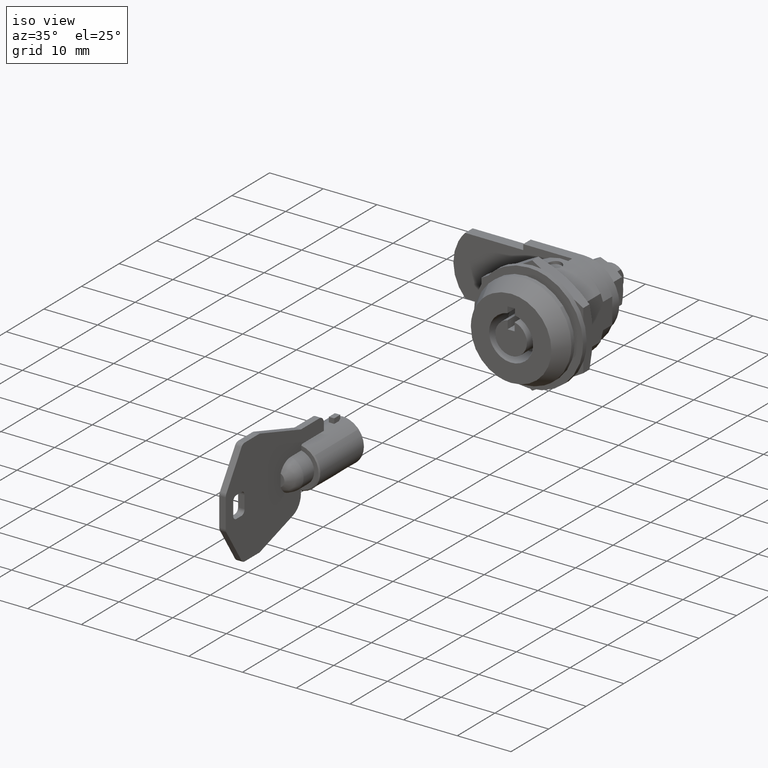
[diagram: clean part render]
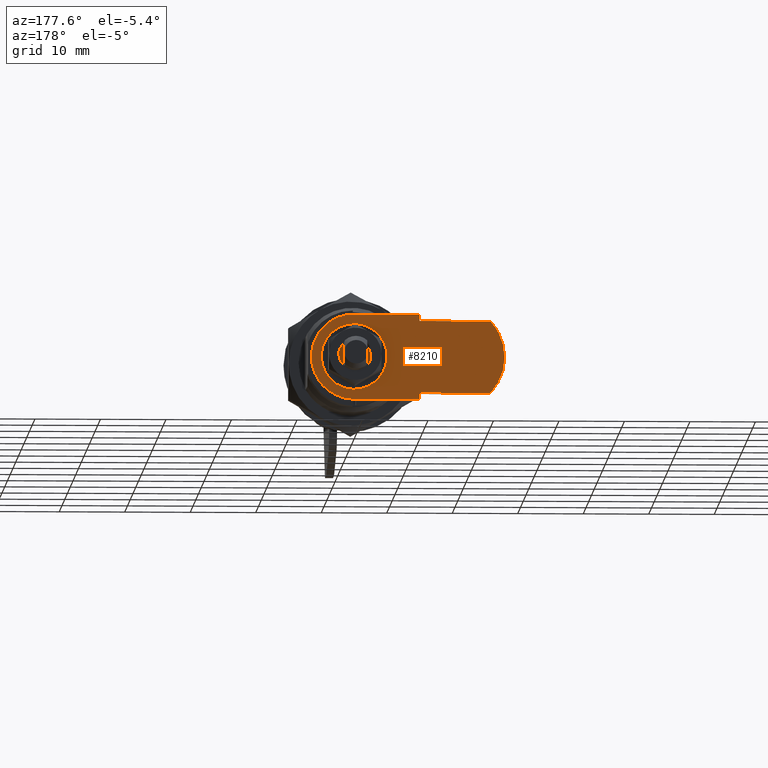
[diagram: tour spotlight — one face highlighted and labeled with its STEP entity id]
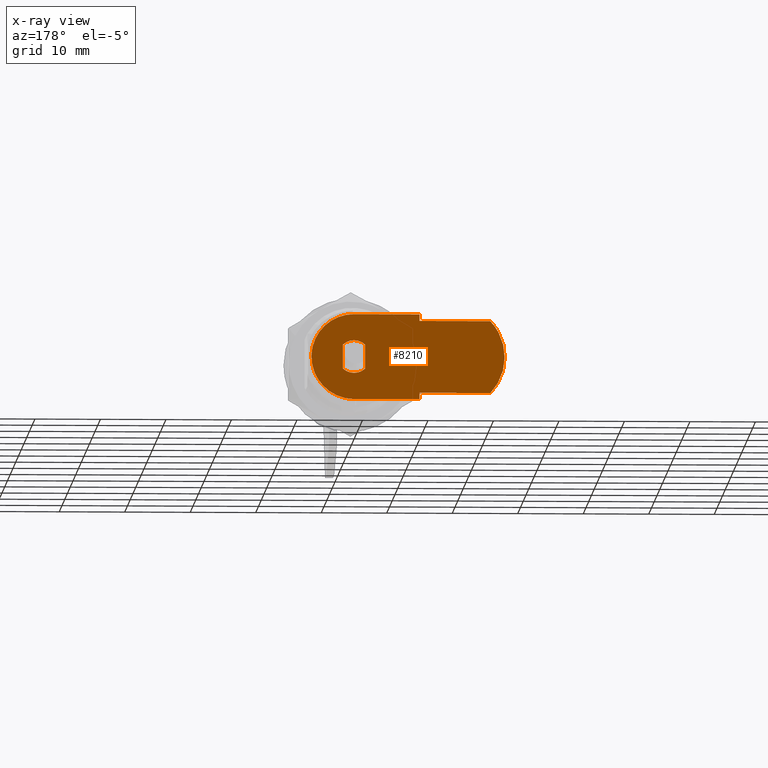
[diagram: x-ray of the same camera — body ghosted, this tour face saturated]
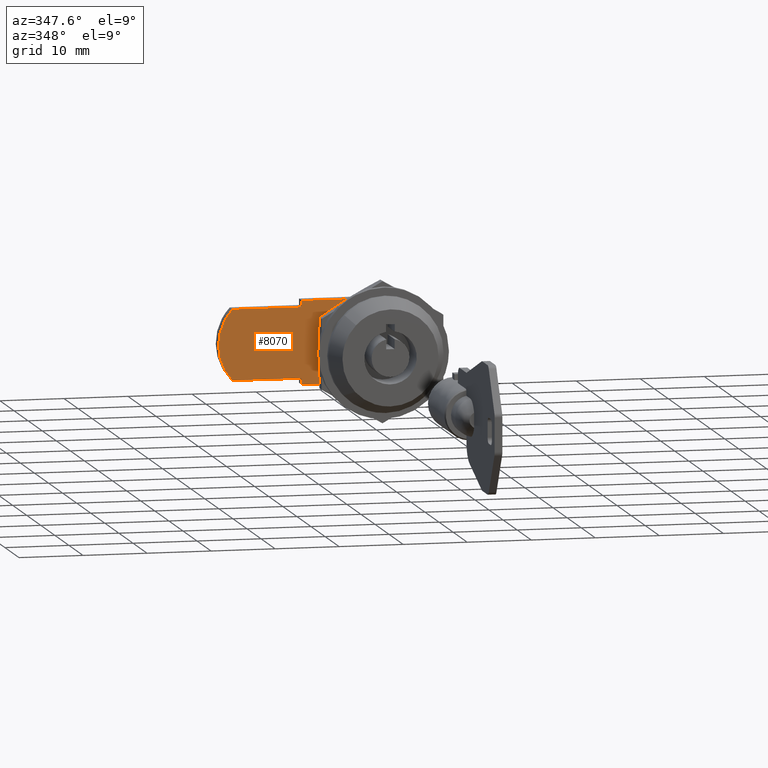
[diagram: tour spotlight — one face highlighted and labeled with its STEP entity id]
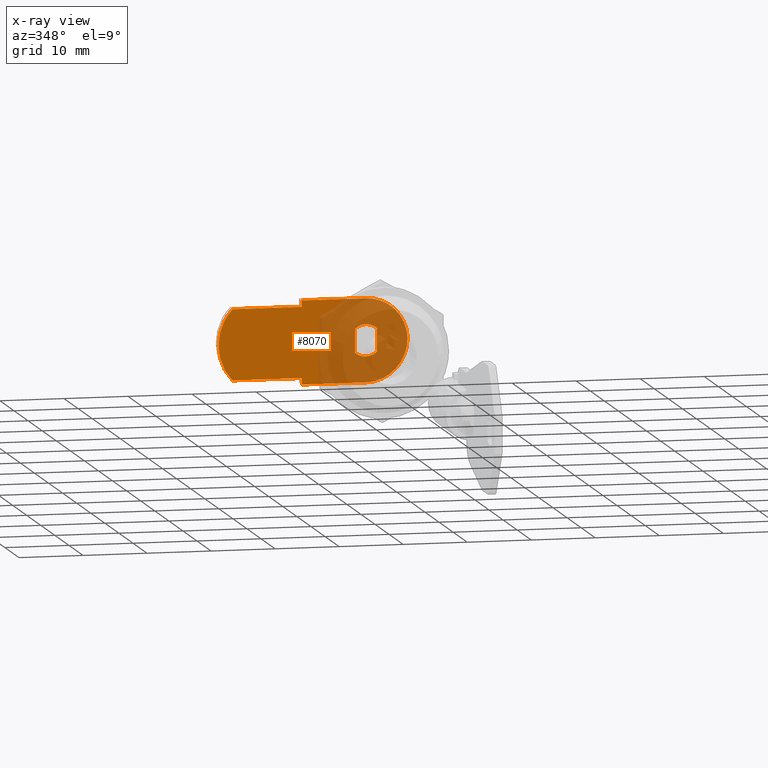
[diagram: x-ray of the same camera — body ghosted, this tour face saturated]
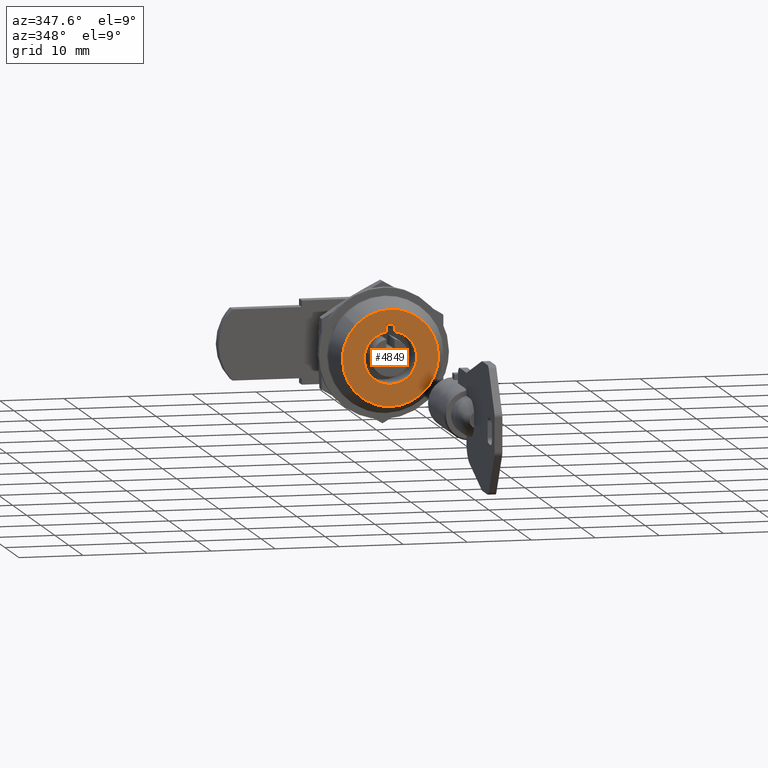
[diagram: tour spotlight — one face highlighted and labeled with its STEP entity id]
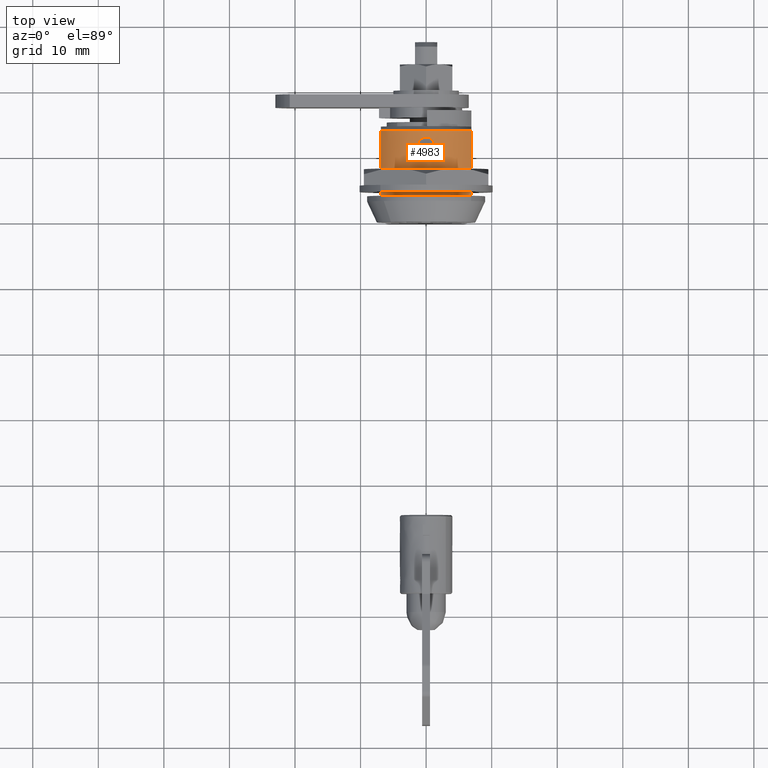
[diagram: tour spotlight — one face highlighted and labeled with its STEP entity id]
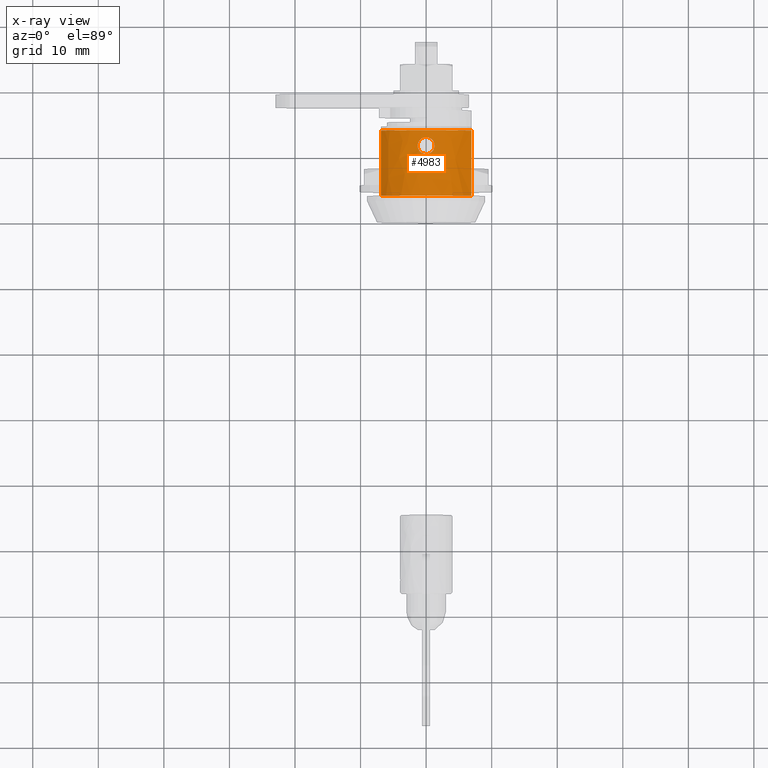
[diagram: x-ray of the same camera — body ghosted, this tour face saturated]
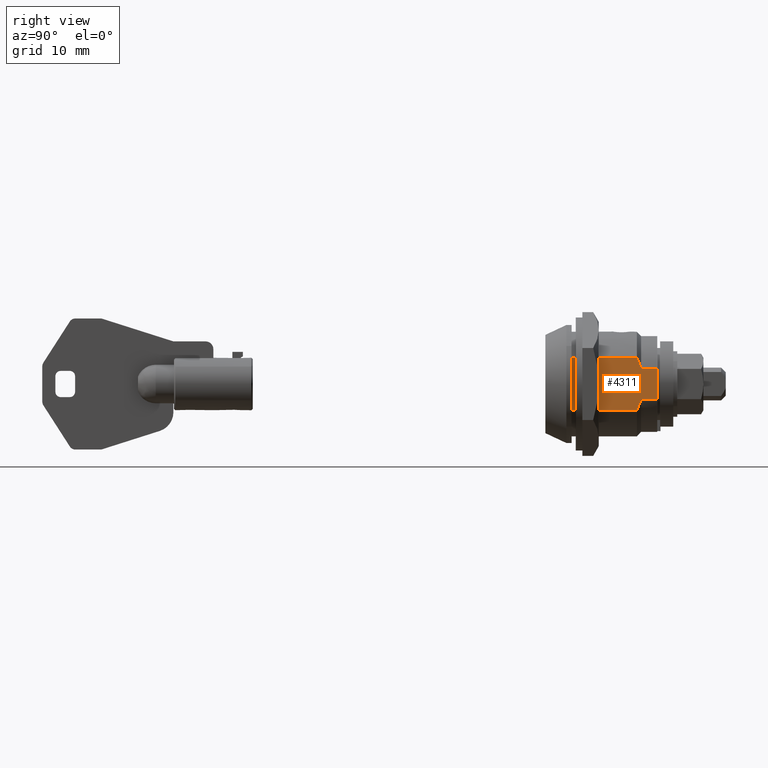
[diagram: tour spotlight — one face highlighted and labeled with its STEP entity id]
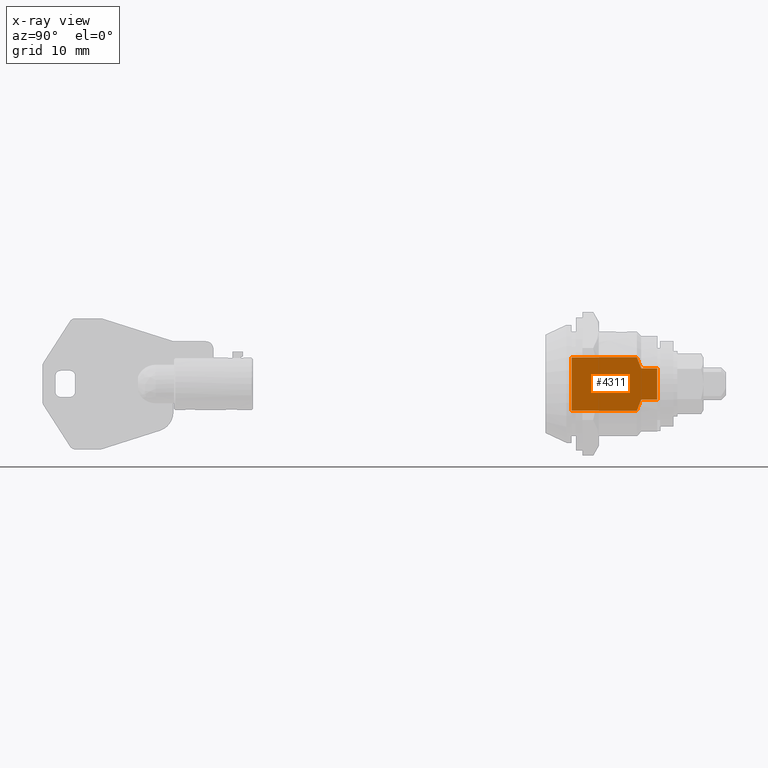
[diagram: x-ray of the same camera — body ghosted, this tour face saturated]
A machine part: a face-by-face anatomy tour. The part has 162 B-rep faces; the first image is the clean iso view, then the 5 largest visible faces are spotlighted one at a time (largest first), each with its STEP entity span.

Face 1 — auxiliary view, entity #8210. An x-ray twin of the same camera follows (body ghosted, this face saturated) — the face is partly hidden behind the body. In plain terms, the highlighted face is a freeform B-spline surface patch.
Definition (entity closure, byte-faithful):
#8071=CARTESIAN_POINT('',(19.499800000000000,-7.973526945322893,7.149349974803480));
#8072=CARTESIAN_POINT('',(19.499800000000000,24.473567826658670,7.149349974803480));
#8073=CARTESIAN_POINT('',(19.499800000000000,-7.973526945322893,-7.149350323490652));
#8074=CARTESIAN_POINT('',(19.499800000000000,24.473567826658670,-7.149350323490652));
#8075=B_SPLINE_SURFACE_WITH_KNOTS('',1,1,((#8071,#8073),(#8072,#8074)),.UNSPECIFIED.,.F.,.F.,.U.,(2,2),(2,2),(0.0,32.447094771981561),(0.0,14.298700298294129),.UNSPECIFIED.);
#8076=CARTESIAN_POINT('',(19.499800000000000,20.809475019311002,-5.500000000000000));
#8077=VERTEX_POINT('',#8076);
#8078=CARTESIAN_POINT('',(19.499800000000000,20.809475019311002,5.500000000000000));
#8079=VERTEX_POINT('',#8078);
#8080=CARTESIAN_POINT('',(19.499800000000000,20.809475019311002,-5.500000000000000));
#8081=CARTESIAN_POINT('',(19.499800000000040,21.352642534375711,-4.926796942105954));
#8082=CARTESIAN_POINT('',(19.499799999999968,22.083774110516860,-3.879554532072929));
#8083=CARTESIAN_POINT('',(19.499800000000061,22.765759298593220,-2.137341507980859));
#8084=CARTESIAN_POINT('',(19.499799999999830,23.015593560691549,-0.696755047744979));
#8085=CARTESIAN_POINT('',(19.499800000000221,22.997211410926269,0.854739609446329));
#8086=CARTESIAN_POINT('',(19.499799999999912,22.704118112759321,2.383373050502486));
#8087=CARTESIAN_POINT('',(19.499799999999858,21.984088963247689,4.045948512109888));
#8088=CARTESIAN_POINT('',(19.499800000000199,21.243884014519349,5.041359311464127));
#8089=CARTESIAN_POINT('',(19.499800000000000,20.809475019311002,5.500000000000000));
#8090=B_SPLINE_CURVE_WITH_KNOTS('',3,(#8080,#8081,#8082,#8083,#8084,#8085,#8086,#8087,#8088,#8089),.UNSPECIFIED.,.F.,.U.,(4,1,1,1,1,1,1,4),(0.000000076347678,2.368888360694081,3.790233793899564,5.590592220531494,6.727622310176332,8.433252129684943,10.233612536371650,12.128723139913379),.UNSPECIFIED.);
#8091=EDGE_CURVE('',#8077,#8079,#8090,.T.);
#8092=ORIENTED_EDGE('',*,*,#8091,.T.);
#8093=CARTESIAN_POINT('',(19.499800000000000,10.0,5.500000000000000));
#8094=VERTEX_POINT('',#8093);
#8095=CARTESIAN_POINT('',(19.499800000000000,10.0,5.500000000000000));
#8096=CARTESIAN_POINT('',(19.499800000000000,20.809475019311002,5.500000000000000));
#8097=QUASI_UNIFORM_CURVE('',1,(#8095,#8096),.UNSPECIFIED.,.F.,.U.);
#8098=EDGE_CURVE('',#8094,#8079,#8097,.T.);
#8099=ORIENTED_EDGE('',*,*,#8098,.F.);
#8100=CARTESIAN_POINT('',(19.499800000000000,10.0,6.500000000000000));
#8101=VERTEX_POINT('',#8100);
#8102=CARTESIAN_POINT('',(19.499800000000000,10.0,6.500000000000000));
#8103=CARTESIAN_POINT('',(19.499800000000000,10.0,5.500000000000000));
#8104=QUASI_UNIFORM_CURVE('',1,(#8102,#8103),.UNSPECIFIED.,.F.,.U.);
#8105=EDGE_CURVE('',#8101,#8094,#8104,.T.);
#8106=ORIENTED_EDGE('',*,*,#8105,.F.);
#8107=CARTESIAN_POINT('',(19.499800000000000,3.979971E-016,6.500000000000000));
#8108=VERTEX_POINT('',#8107);
#8109=CARTESIAN_POINT('',(19.499800000000000,3.979971E-016,6.500000000000000));
#8110=CARTESIAN_POINT('',(19.499800000000000,10.0,6.500000000000000));
#8111=QUASI_UNIFORM_CURVE('',1,(#8109,#8110),.UNSPECIFIED.,.F.,.U.);
#8112=EDGE_CURVE('',#8108,#8101,#8111,.T.);
#8113=ORIENTED_EDGE('',*,*,#8112,.F.);
#8114=CARTESIAN_POINT('',(19.499800000000000,-6.499999999999924,-0.000000993931555));
#8115=VERTEX_POINT('',#8114);
#8116=CARTESIAN_POINT('',(19.499800000000000,3.979971E-016,6.500000000000000));
#8117=CARTESIAN_POINT('',(19.499799999999890,-0.638179550828711,6.500301669190522));
#8118=CARTESIAN_POINT('',(19.499800000000160,-1.542024655136552,6.365762743129753));
#8119=CARTESIAN_POINT('',(19.499799999999851,-2.765549020631846,5.910887066382500));
#8120=CARTESIAN_POINT('',(19.499800000000150,-3.768048386981948,5.351177984998674));
#8121=CARTESIAN_POINT('',(19.499799999999990,-4.861971842230288,4.407655328397759));
#8122=CARTESIAN_POINT('',(19.499799999999961,-5.718390493506067,3.207318339105347));
#8123=CARTESIAN_POINT('',(19.499800000000089,-6.342058718977611,1.701550351389214));
#8124=CARTESIAN_POINT('',(19.499800000000040,-6.500274137962652,0.638164959091994));
#8125=CARTESIAN_POINT('',(19.499800000000000,-6.499999999999924,-0.000000993931555));
#8126=B_SPLINE_CURVE_WITH_KNOTS('',3,(#8116,#8117,#8118,#8119,#8120,#8121,#8122,#8123,#8124,#8125),.UNSPECIFIED.,.F.,.U.,(4,1,1,1,1,1,1,4),(0.000000096690091,1.914417247518765,2.712098249098593,3.908630291325436,5.344391319401957,7.019537575198939,8.295823594794740,10.210240748891540),.UNSPECIFIED.);
#8127=EDGE_CURVE('',#8108,#8115,#8126,.T.);
#8128=ORIENTED_EDGE('',*,*,#8127,.T.);
#8129=CARTESIAN_POINT('',(19.499800000000000,0.0,-6.500000000000000));
#8130=VERTEX_POINT('',#8129);
#8131=CARTESIAN_POINT('',(19.499800000000000,-6.499999999999924,-0.000000993931555));
#8132=CARTESIAN_POINT('',(19.499800000000089,-6.500221220229908,-0.584981770422163));
#8133=CARTESIAN_POINT('',(19.499799999999880,-6.377083749637980,-1.488886032808410));
#8134=CARTESIAN_POINT('',(19.499800000000100,-5.936938186833933,-2.718922228395391));
#8135=CARTESIAN_POINT('',(19.499800000000029,-5.351168341657617,-3.768041324002226));
#8136=CARTESIAN_POINT('',(19.499799999999901,-4.407668112098946,-4.861982818720227));
#8137=CARTESIAN_POINT('',(19.499800000000139,-3.360102897197002,-5.609406979973004));
#8138=CARTESIAN_POINT('',(19.499799999999979,-2.273618158672722,-6.115014741328975));
#8139=CARTESIAN_POINT('',(19.499799999999961,-1.249665569355025,-6.418798384958298));
#8140=CARTESIAN_POINT('',(19.499800000000029,-0.425423900910749,-6.500046852966523));
#8141=CARTESIAN_POINT('',(19.499800000000000,0.0,-6.500000000000000));
#8142=B_SPLINE_CURVE_WITH_KNOTS('',3,(#8131,#8132,#8133,#8134,#8135,#8136,#8137,#8138,#8139,#8140,#8141),.UNSPECIFIED.,.F.,.U.,(4,1,1,1,1,1,1,1,4),(0.000000097034606,1.754872022022992,2.712097951803362,3.908629862649992,5.344390732271959,7.019536804559957,7.737448089097114,8.933968644938119,10.210239628492021),.UNSPECIFIED.);
#8143=EDGE_CURVE('',#8115,#8130,#8142,.T.);
#8144=ORIENTED_EDGE('',*,*,#8143,.T.);
#8145=CARTESIAN_POINT('',(19.499800000000000,10.0,-6.500000000000000));
#8146=VERTEX_POINT('',#8145);
#8147=CARTESIAN_POINT('',(19.499800000000000,10.0,-6.500000000000000));
#8148=CARTESIAN_POINT('',(19.499800000000000,0.0,-6.500000000000000));
#8149=QUASI_UNIFORM_CURVE('',1,(#8147,#8148),.UNSPECIFIED.,.F.,.U.);
#8150=EDGE_CURVE('',#8146,#8130,#8149,.T.);
#8151=ORIENTED_EDGE('',*,*,#8150,.F.);
#8152=CARTESIAN_POINT('',(19.499800000000000,10.0,-5.500000000000000));
#8153=VERTEX_POINT('',#8152);
#8154=CARTESIAN_POINT('',(19.499800000000000,10.0,-5.500000000000000));
#8155=CARTESIAN_POINT('',(19.499800000000000,10.0,-6.500000000000000));
#8156=QUASI_UNIFORM_CURVE('',1,(#8154,#8155),.UNSPECIFIED.,.F.,.U.);
#8157=EDGE_CURVE('',#8153,#8146,#8156,.T.);
#8158=ORIENTED_EDGE('',*,*,#8157,.F.);
#8159=CARTESIAN_POINT('',(19.499800000000000,20.809475019311002,-5.500000000000000));
#8160=CARTESIAN_POINT('',(19.499800000000000,10.0,-5.500000000000000));
#8161=QUASI_UNIFORM_CURVE('',1,(#8159,#8160),.UNSPECIFIED.,.F.,.U.);
#8162=EDGE_CURVE('',#8077,#8153,#8161,.T.);
#8163=ORIENTED_EDGE('',*,*,#8162,.F.);
#8164=EDGE_LOOP('',(#8092,#8099,#8106,#8113,#8128,#8144,#8151,#8158,#8163));
#8165=FACE_OUTER_BOUND('',#8164,.T.);
#8166=CARTESIAN_POINT('',(19.499800000000000,-1.700000000000100,-1.833030277982240));
#8167=VERTEX_POINT('',#8166);
#8168=CARTESIAN_POINT('',(19.499800000000000,1.699999999999905,-1.833030277982425));
#8169=VERTEX_POINT('',#8168);
#8170=CARTESIAN_POINT('',(19.499800000000000,-1.700000000000100,-1.833030277982240));
#8171=CARTESIAN_POINT('',(19.499800000000018,-1.542975839810066,-1.978712755647818));
#8172=CARTESIAN_POINT('',(19.499799999999940,-1.159226248473611,-2.252248391724998));
#8173=CARTESIAN_POINT('',(19.499800000000100,-0.564741337652000,-2.461766407830945));
#8174=CARTESIAN_POINT('',(19.499799999999919,-0.038944429262949,-2.510932677086630));
#8175=CARTESIAN_POINT('',(19.499800000000100,0.408910333473132,-2.479477590470370));
#8176=CARTESIAN_POINT('',(19.499799999999929,1.016830033715589,-2.327465594689200));
#8177=CARTESIAN_POINT('',(19.499800000000000,1.457452750838059,-2.058412050794656));
#8178=CARTESIAN_POINT('',(19.499800000000000,1.699999999999905,-1.833030277982425));
#8179=B_SPLINE_CURVE_WITH_KNOTS('',3,(#8170,#8171,#8172,#8173,#8174,#8175,#8176,#8177,#8178),.UNSPECIFIED.,.F.,.U.,(4,1,1,1,1,1,4),(0.000000080748101,0.642612286244308,1.402106388864894,1.869449200517366,2.219946369140934,2.745750830210588,3.738898220578558),.UNSPECIFIED.);
#8180=EDGE_CURVE('',#8167,#8169,#8179,.T.);
#8181=ORIENTED_EDGE('',*,*,#8180,.F.);
#8182=CARTESIAN_POINT('',(19.499800000000000,-1.700000000000100,1.833030277982240));
#8183=VERTEX_POINT('',#8182);
#8184=CARTESIAN_POINT('',(19.499800000000000,-1.700000000000100,1.833030277982240));
#8185=CARTESIAN_POINT('',(19.499800000000000,-1.700000000000100,-1.833030277982240));
#8186=QUASI_UNIFORM_CURVE('',1,(#8184,#8185),.UNSPECIFIED.,.F.,.U.);
#8187=EDGE_CURVE('',#8183,#8167,#8186,.T.);
#8188=ORIENTED_EDGE('',*,*,#8187,.F.);
#8189=CARTESIAN_POINT('',(19.499800000000000,1.699999999999905,1.833030277982425));
#8190=VERTEX_POINT('',#8189);
#8191=CARTESIAN_POINT('',(19.499800000000000,1.699999999999905,1.833030277982425));
#8192=CARTESIAN_POINT('',(19.499800000000018,1.571518947953197,1.952224475331377));
#8193=CARTESIAN_POINT('',(19.499800000000000,1.289335029579031,2.163391811132033));
#8194=CARTESIAN_POINT('',(19.499800000000011,0.720435903075041,2.426093756971957));
#8195=CARTESIAN_POINT('',(19.499800000000029,0.058428779770395,2.535323226505843));
#8196=CARTESIAN_POINT('',(19.499800000000000,-0.584170886864564,2.452167904422844));
#8197=CARTESIAN_POINT('',(19.499799999999979,-1.171984765603290,2.237228747349889));
#8198=CARTESIAN_POINT('',(19.499799999999919,-1.514460303504250,2.005276174245930));
#8199=CARTESIAN_POINT('',(19.499800000000000,-1.700000000000100,1.833030277982240));
#8200=B_SPLINE_CURVE_WITH_KNOTS('',3,(#8191,#8192,#8193,#8194,#8195,#8196,#8197,#8198,#8199),.UNSPECIFIED.,.F.,.U.,(4,1,1,1,1,1,4),(0.000000080748095,0.525778615186002,1.051566484969231,1.869449200517372,2.512071383520074,2.979439561864485,3.738898220578558),.UNSPECIFIED.);
#8201=EDGE_CURVE('',#8190,#8183,#8200,.T.);
#8202=ORIENTED_EDGE('',*,*,#8201,.F.);
#8203=CARTESIAN_POINT('',(19.499800000000000,1.699999999999905,-1.833030277982425));
#8204=CARTESIAN_POINT('',(19.499800000000000,1.699999999999905,1.833030277982425));
#8205=QUASI_UNIFORM_CURVE('',1,(#8203,#8204),.UNSPECIFIED.,.F.,.U.);
#8206=EDGE_CURVE('',#8169,#8190,#8205,.T.);
#8207=ORIENTED_EDGE('',*,*,#8206,.F.);
#8208=EDGE_LOOP('',(#8181,#8188,#8202,#8207));
#8209=FACE_BOUND('',#8208,.T.);
#8210=ADVANCED_FACE('',(#8165,#8209),#8075,.F.);

Face 2 — auxiliary view, entity #8070. An x-ray twin of the same camera follows (body ghosted, this face saturated) — the face is partly hidden behind the body. In plain terms, the highlighted face is a freeform B-spline surface patch.
Definition (entity closure, byte-faithful):
#7927=CARTESIAN_POINT('',(17.499800000000000,-7.973524205060147,7.149349974803480));
#7928=CARTESIAN_POINT('',(17.499800000000000,24.473510226280869,7.149349974803480));
#7929=CARTESIAN_POINT('',(17.499800000000000,-7.973524205060147,-7.149350323490652));
#7930=CARTESIAN_POINT('',(17.499800000000000,24.473510226280869,-7.149350323490652));
#7931=B_SPLINE_SURFACE_WITH_KNOTS('',1,1,((#7927,#7929),(#7928,#7930)),.UNSPECIFIED.,.F.,.F.,.U.,(2,2),(2,2),(0.0,32.447034431341017),(0.0,14.298700298294129),.UNSPECIFIED.);
#7932=CARTESIAN_POINT('',(17.499800000000000,20.809475019311002,-5.500000000000000));
#7933=VERTEX_POINT('',#7932);
#7934=CARTESIAN_POINT('',(17.499800000000000,20.809475019311002,5.500000000000000));
#7935=VERTEX_POINT('',#7934);
#7936=CARTESIAN_POINT('',(17.499800000000000,20.809475019311002,-5.500000000000000));
#7937=CARTESIAN_POINT('',(17.499799999999951,21.309119271392959,-4.972608236305004));
#7938=CARTESIAN_POINT('',(17.499800000000089,21.940133550164450,-4.091422995667212));
#7939=CARTESIAN_POINT('',(17.499799999999890,22.586143320282549,-2.646621180567522));
#7940=CARTESIAN_POINT('',(17.499800000000182,22.880394887116331,-1.543013839063670));
#7941=CARTESIAN_POINT('',(17.499799999999780,23.018896521120109,-0.317243437445659));
#7942=CARTESIAN_POINT('',(17.499800000000139,22.993372374961961,0.760028063263485));
#7943=CARTESIAN_POINT('',(17.499799999999841,22.798622483652149,1.882738151437212));
#7944=CARTESIAN_POINT('',(17.499800000000128,22.469086854556391,2.940424929674380));
#7945=CARTESIAN_POINT('',(17.499799999999770,21.870174698167901,4.199065611414202));
#7946=CARTESIAN_POINT('',(17.499800000000221,21.243889006018279,5.041363272320189));
#7947=CARTESIAN_POINT('',(17.499800000000000,20.809475019311002,5.500000000000000));
#7948=B_SPLINE_CURVE_WITH_KNOTS('',3,(#7936,#7937,#7938,#7939,#7940,#7941,#7942,#7943,#7944,#7945,#7946,#7947),.UNSPECIFIED.,.F.,.U.,(4,1,1,1,1,1,1,1,1,4),(0.000000076347678,2.179369468120905,3.221692574467047,4.737802405796497,5.590592220531494,6.917138359436771,7.959472208947114,9.001785407281872,10.233612536371650,12.128723139913379),.UNSPECIFIED.);
#7949=EDGE_CURVE('',#7933,#7935,#7948,.T.);
#7950=ORIENTED_EDGE('',*,*,#7949,.F.);
#7951=CARTESIAN_POINT('',(17.499800000000000,10.0,-5.500000000000000));
#7952=VERTEX_POINT('',#7951);
#7953=CARTESIAN_POINT('',(17.499800000000000,20.809475019311002,-5.500000000000000));
#7954=CARTESIAN_POINT('',(17.499800000000000,10.0,-5.500000000000000));
#7955=QUASI_UNIFORM_CURVE('',1,(#7953,#7954),.UNSPECIFIED.,.F.,.U.);
#7956=EDGE_CURVE('',#7933,#7952,#7955,.T.);
#7957=ORIENTED_EDGE('',*,*,#7956,.T.);
#7958=CARTESIAN_POINT('',(17.499800000000000,10.0,-6.500000000000000));
#7959=VERTEX_POINT('',#7958);
#7960=CARTESIAN_POINT('',(17.499800000000000,10.0,-5.500000000000000));
#7961=CARTESIAN_POINT('',(17.499800000000000,10.0,-6.500000000000000));
#7962=QUASI_UNIFORM_CURVE('',1,(#7960,#7961),.UNSPECIFIED.,.F.,.U.);
#7963=EDGE_CURVE('',#7952,#7959,#7962,.T.);
#7964=ORIENTED_EDGE('',*,*,#7963,.T.);
#7965=CARTESIAN_POINT('',(17.499800000000000,0.0,-6.500000000000000));
#7966=VERTEX_POINT('',#7965);
#7967=CARTESIAN_POINT('',(17.499800000000000,10.0,-6.500000000000000));
#7968=CARTESIAN_POINT('',(17.499800000000000,0.0,-6.500000000000000));
#7969=QUASI_UNIFORM_CURVE('',1,(#7967,#7968),.UNSPECIFIED.,.F.,.U.);
#7970=EDGE_CURVE('',#7959,#7966,#7969,.T.);
#7971=ORIENTED_EDGE('',*,*,#7970,.T.);
#7972=CARTESIAN_POINT('',(17.499800000000000,-6.499999999999924,-0.000000993931555));
#7973=VERTEX_POINT('',#7972);
#7974=CARTESIAN_POINT('',(17.499800000000000,-6.499999999999924,-0.000000993931555));
#7975=CARTESIAN_POINT('',(17.499799999999990,-6.500050616228368,-0.425427042327566));
#7976=CARTESIAN_POINT('',(17.499800000000040,-6.426642529057130,-1.169896962440129));
#7977=CARTESIAN_POINT('',(17.499799999999951,-6.149291729741768,-2.172008203176689));
#7978=CARTESIAN_POINT('',(17.499800000000061,-5.702088948834822,-3.198104650409914));
#7979=CARTESIAN_POINT('',(17.499799999999951,-5.011679629483419,-4.217758870349840));
#7980=CARTESIAN_POINT('',(17.499800000000050,-4.063475574829587,-5.120432628756674));
#7981=CARTESIAN_POINT('',(17.499799999999929,-3.191045881654870,-5.687978824075811));
#7982=CARTESIAN_POINT('',(17.499800000000061,-2.273625035879995,-6.115025978798578));
#7983=CARTESIAN_POINT('',(17.499799999999951,-1.249666720935796,-6.418800240558206));
#7984=CARTESIAN_POINT('',(17.499800000000029,-0.425423716752507,-6.500046548348649));
#7985=CARTESIAN_POINT('',(17.499800000000000,0.0,-6.500000000000000));
#7986=B_SPLINE_CURVE_WITH_KNOTS('',3,(#7974,#7975,#7976,#7977,#7978,#7979,#7980,#7981,#7982,#7983,#7984,#7985),.UNSPECIFIED.,.F.,.U.,(4,1,1,1,1,1,1,1,1,4),(0.000000097034606,1.276275196461892,2.233488183033234,3.110936171743759,4.626547442655870,5.902766694716857,7.019536804559957,7.737448089097114,8.933968644938119,10.210239628492021),.UNSPECIFIED.);
#7987=EDGE_CURVE('',#7973,#7966,#7986,.T.);
#7988=ORIENTED_EDGE('',*,*,#7987,.F.);
#7989=CARTESIAN_POINT('',(17.499800000000000,3.979971E-016,6.500000000000000));
#7990=VERTEX_POINT('',#7989);
#7991=CARTESIAN_POINT('',(17.499800000000000,3.979971E-016,6.500000000000000));
#7992=CARTESIAN_POINT('',(17.499800000000000,-0.372237101755605,6.500022234706312));
#7993=CARTESIAN_POINT('',(17.499800000000000,-1.196504315342978,6.429042349372064));
#7994=CARTESIAN_POINT('',(17.499800000000040,-2.251060215257179,6.130233380089554));
#7995=CARTESIAN_POINT('',(17.499799999999990,-3.310684022483225,5.629072978366904));
#7996=CARTESIAN_POINT('',(17.499800000000000,-4.298511773627595,4.942444478894545));
#7997=CARTESIAN_POINT('',(17.499800000000040,-5.154220962933634,4.021250485101271));
#7998=CARTESIAN_POINT('',(17.499800000000079,-5.810306308076611,2.985080447231671));
#7999=CARTESIAN_POINT('',(17.499799999999940,-6.342078995919162,1.701563344428691));
#8000=CARTESIAN_POINT('',(17.499799999999979,-6.500273560504184,0.638164895137527));
#8001=CARTESIAN_POINT('',(17.499800000000000,-6.499999999999924,-0.000000993931555));
#8002=B_SPLINE_CURVE_WITH_KNOTS('',3,(#7991,#7992,#7993,#7994,#7995,#7996,#7997,#7998,#7999,#8000,#8001),.UNSPECIFIED.,.F.,.U.,(4,1,1,1,1,1,1,1,4),(0.000000096690091,1.116721878004373,2.472792581775597,3.270479893261324,4.626547949817617,6.062319231493549,7.019537575198939,8.295823594794740,10.210240748891540),.UNSPECIFIED.);
#8003=EDGE_CURVE('',#7990,#7973,#8002,.T.);
#8004=ORIENTED_EDGE('',*,*,#8003,.F.);
#8005=CARTESIAN_POINT('',(17.499800000000000,10.0,6.500000000000000));
#8006=VERTEX_POINT('',#8005);
#8007=CARTESIAN_POINT('',(17.499800000000000,3.979971E-016,6.500000000000000));
#8008=CARTESIAN_POINT('',(17.499800000000000,10.0,6.500000000000000));
#8009=QUASI_UNIFORM_CURVE('',1,(#8007,#8008),.UNSPECIFIED.,.F.,.U.);
#8010=EDGE_CURVE('',#7990,#8006,#8009,.T.);
#8011=ORIENTED_EDGE('',*,*,#8010,.T.);
#8012=CARTESIAN_POINT('',(17.499800000000000,10.0,5.500000000000000));
#8013=VERTEX_POINT('',#8012);
#8014=CARTESIAN_POINT('',(17.499800000000000,10.0,6.500000000000000));
#8015=CARTESIAN_POINT('',(17.499800000000000,10.0,5.500000000000000));
#8016=QUASI_UNIFORM_CURVE('',1,(#8014,#8015),.UNSPECIFIED.,.F.,.U.);
#8017=EDGE_CURVE('',#8006,#8013,#8016,.T.);
#8018=ORIENTED_EDGE('',*,*,#8017,.T.);
#8019=CARTESIAN_POINT('',(17.499800000000000,10.0,5.500000000000000));
#8020=CARTESIAN_POINT('',(17.499800000000000,20.809475019311002,5.500000000000000));
#8021=QUASI_UNIFORM_CURVE('',1,(#8019,#8020),.UNSPECIFIED.,.F.,.U.);
#8022=EDGE_CURVE('',#8013,#7935,#8021,.T.);
#8023=ORIENTED_EDGE('',*,*,#8022,.T.);
#8024=EDGE_LOOP('',(#7950,#7957,#7964,#7971,#7988,#8004,#8011,#8018,#8023));
#8025=FACE_OUTER_BOUND('',#8024,.T.);
#8026=CARTESIAN_POINT('',(17.499800000000000,-1.700000000000100,-1.833030277982240));
#8027=VERTEX_POINT('',#8026);
#8028=CARTESIAN_POINT('',(17.499800000000000,1.699999999999905,-1.833030277982425));
#8029=VERTEX_POINT('',#8028);
#8030=CARTESIAN_POINT('',(17.499800000000000,-1.700000000000100,-1.833030277982240));
#8031=CARTESIAN_POINT('',(17.499800000000000,-1.542976544255501,-1.978713760855437));
#8032=CARTESIAN_POINT('',(17.499799999999990,-1.159218864501799,-2.252236381345497));
#8033=CARTESIAN_POINT('',(17.499800000000018,-0.564747402386226,-2.461758240943283));
#8034=CARTESIAN_POINT('',(17.499800000000000,0.058436019779209,-2.520108597014581));
#8035=CARTESIAN_POINT('',(17.499800000000029,0.584165204956891,-2.452174121023456));
#8036=CARTESIAN_POINT('',(17.499799999999990,1.171981981176068,-2.237238693810963));
#8037=CARTESIAN_POINT('',(17.499800000000000,1.514467260272893,-2.005280983720652));
#8038=CARTESIAN_POINT('',(17.499800000000000,1.699999999999905,-1.833030277982425));
#8039=B_SPLINE_CURVE_WITH_KNOTS('',3,(#8030,#8031,#8032,#8033,#8034,#8035,#8036,#8037,#8038),.UNSPECIFIED.,.F.,.U.,(4,1,1,1,1,1,4),(0.000000080748101,0.642612286244308,1.402106388864894,1.869449200517366,2.512071383520067,2.979439561864480,3.738898220578558),.UNSPECIFIED.);
#8040=EDGE_CURVE('',#8027,#8029,#8039,.T.);
#8041=ORIENTED_EDGE('',*,*,#8040,.T.);
#8042=CARTESIAN_POINT('',(17.499800000000000,1.699999999999905,1.833030277982425));
#8043=VERTEX_POINT('',#8042);
#8044=CARTESIAN_POINT('',(17.499800000000000,1.699999999999905,-1.833030277982425));
#8045=CARTESIAN_POINT('',(17.499800000000000,1.699999999999905,1.833030277982425));
#8046=QUASI_UNIFORM_CURVE('',1,(#8044,#8045),.UNSPECIFIED.,.F.,.U.);
#8047=EDGE_CURVE('',#8029,#8043,#8046,.T.);
#8048=ORIENTED_EDGE('',*,*,#8047,.T.);
#8049=CARTESIAN_POINT('',(17.499800000000000,-1.700000000000100,1.833030277982240));
#8050=VERTEX_POINT('',#8049);
#8051=CARTESIAN_POINT('',(17.499800000000000,1.699999999999905,1.833030277982425));
#8052=CARTESIAN_POINT('',(17.499800000000018,1.571518212829504,1.952224125626275));
#8053=CARTESIAN_POINT('',(17.499799999999968,1.289335394523938,2.163392374151371));
#8054=CARTESIAN_POINT('',(17.499800000000018,0.720435892810812,2.426093181110296));
#8055=CARTESIAN_POINT('',(17.499800000000018,0.058428567729503,2.535324012118452));
#8056=CARTESIAN_POINT('',(17.499800000000018,-0.584169678361471,2.452165853440130));
#8057=CARTESIAN_POINT('',(17.499799999999901,-1.171989194135670,2.237234942144124));
#8058=CARTESIAN_POINT('',(17.499800000000018,-1.514455140850983,2.005268912750401));
#8059=CARTESIAN_POINT('',(17.499800000000000,-1.700000000000100,1.833030277982240));
#8060=B_SPLINE_CURVE_WITH_KNOTS('',3,(#8051,#8052,#8053,#8054,#8055,#8056,#8057,#8058,#8059),.UNSPECIFIED.,.F.,.U.,(4,1,1,1,1,1,4),(0.000000080748095,0.525778615186002,1.051566484969231,1.869449200517372,2.512071383520074,2.979439561864485,3.738898220578558),.UNSPECIFIED.);
#8061=EDGE_CURVE('',#8043,#8050,#8060,.T.);
#8062=ORIENTED_EDGE('',*,*,#8061,.T.);
#8063=CARTESIAN_POINT('',(17.499800000000000,-1.700000000000100,1.833030277982240));
#8064=CARTESIAN_POINT('',(17.499800000000000,-1.700000000000100,-1.833030277982240));
#8065=QUASI_UNIFORM_CURVE('',1,(#8063,#8064),.UNSPECIFIED.,.F.,.U.);
#8066=EDGE_CURVE('',#8050,#8027,#8065,.T.);
#8067=ORIENTED_EDGE('',*,*,#8066,.T.);
#8068=EDGE_LOOP('',(#8041,#8048,#8062,#8067));
#8069=FACE_BOUND('',#8068,.T.);
#8070=ADVANCED_FACE('',(#8025,#8069),#7931,.T.);

Face 3 — auxiliary view, entity #4849. In plain terms, the highlighted face is a freeform B-spline surface patch.
Definition (entity closure, byte-faithful):
#3403=CARTESIAN_POINT('',(-0.000000085441742,5.374882100453605,5.230739756825190));
#3404=VERTEX_POINT('',#3403);
#3410=CARTESIAN_POINT('',(0.0,0.0,7.500000000000000));
#3411=VERTEX_POINT('',#3410);
#3412=CARTESIAN_POINT('',(0.0,0.0,7.500000000000000));
#3413=CARTESIAN_POINT('',(-8.434475E-009,0.530587376547696,7.500093306336281));
#3414=CARTESIAN_POINT('',(-0.000000022821840,1.435653060119178,7.403522898235855));
#3415=CARTESIAN_POINT('',(-0.000000043339855,2.726379473530311,7.022384628638660));
#3416=CARTESIAN_POINT('',(-0.000000064423403,4.052681825330905,6.382689165830320));
#3417=CARTESIAN_POINT('',(-0.000000078177420,4.917905554608581,5.700610317487552));
#3418=CARTESIAN_POINT('',(-0.000000085441742,5.374882100453605,5.230739756825190));
#3419=B_SPLINE_CURVE_WITH_KNOTS('',3,(#3412,#3413,#3414,#3415,#3416,#3417,#3418),.UNSPECIFIED.,.F.,.U.,(4,1,1,1,4),(0.000000023702667,1.591745777649717,2.715347587254189,4.026177377958746,5.992452200920396),.UNSPECIFIED.);
#3420=EDGE_CURVE('',#3411,#3404,#3419,.T.);
#3422=CARTESIAN_POINT('',(0.0,-7.499999999999946,0.000000907479838));
#3423=VERTEX_POINT('',#3422);
#3424=CARTESIAN_POINT('',(0.0,-7.499999999999946,0.000000907479838));
#3425=CARTESIAN_POINT('',(0.0,-7.500040909963945,0.460196335229229));
#3426=CARTESIAN_POINT('',(0.0,-7.423521207879464,1.288530390547608));
#3427=CARTESIAN_POINT('',(0.0,-7.109873094784462,2.478394519780416));
#3428=CARTESIAN_POINT('',(0.0,-6.544277517155627,3.776315138436403));
#3429=CARTESIAN_POINT('',(0.0,-5.609958128699149,5.085779188196347));
#3430=CARTESIAN_POINT('',(0.0,-4.417844138939452,6.113910518102686));
#3431=CARTESIAN_POINT('',(0.0,-3.115513112078590,6.872987033294736));
#3432=CARTESIAN_POINT('',(0.0,-1.687364730732640,7.374102828863133));
#3433=CARTESIAN_POINT('',(0.0,-0.552235120740674,7.500088594287443));
#3434=CARTESIAN_POINT('',(0.0,0.0,7.500000000000000));
#3435=B_SPLINE_CURVE_WITH_KNOTS('',3,(#3424,#3425,#3426,#3427,#3428,#3429,#3430,#3431,#3432,#3433,#3434),.UNSPECIFIED.,.F.,.U.,(4,1,1,1,1,1,1,1,4),(0.000000071620079,1.380590362690722,2.485057898482156,3.681585578019947,5.614443789878998,7.271108675325365,8.375582316946616,10.124342298233691,11.781045860091870),.UNSPECIFIED.);
#3436=EDGE_CURVE('',#3423,#3411,#3435,.T.);
#3438=CARTESIAN_POINT('',(0.0,0.0,-7.500000000000000));
#3439=VERTEX_POINT('',#3438);
#3440=CARTESIAN_POINT('',(0.0,0.0,-7.500000000000000));
#3441=CARTESIAN_POINT('',(0.0,-0.582914537861173,-7.500114540307789));
#3442=CARTESIAN_POINT('',(0.0,-1.810077328070002,-7.356264954276630));
#3443=CARTESIAN_POINT('',(0.0,-3.401244041976450,-6.753796737725565));
#3444=CARTESIAN_POINT('',(0.0,-4.635801635078382,-5.939534964662294));
#3445=CARTESIAN_POINT('',(0.0,-5.604981588456239,-5.039262919363240));
#3446=CARTESIAN_POINT('',(0.0,-6.332968785137326,-4.082467183415490));
#3447=CARTESIAN_POINT('',(0.0,-6.920426060072250,-2.966934822807831));
#3448=CARTESIAN_POINT('',(0.0,-7.371255082857968,-1.656630029727687));
#3449=CARTESIAN_POINT('',(0.0,-7.500149237767837,-0.613599960049212));
#3450=CARTESIAN_POINT('',(0.0,-7.499999999999946,0.000000907479838));
#3451=B_SPLINE_CURVE_WITH_KNOTS('',3,(#3440,#3441,#3442,#3443,#3444,#3445,#3446,#3447,#3448,#3449,#3450),.UNSPECIFIED.,.F.,.U.,(4,1,1,1,1,1,1,1,4),(0.000000071296686,1.748738523979359,3.681585897514429,5.062195702551934,6.166604815529416,7.639260404901982,8.651707165409553,9.940274777202379,11.781046883039590),.UNSPECIFIED.);
#3452=EDGE_CURVE('',#3439,#3423,#3451,.T.);
#3454=CARTESIAN_POINT('',(0.000000086859496,5.529580222725956,-5.066926737313868));
#3455=VERTEX_POINT('',#3454);
#3456=CARTESIAN_POINT('',(0.000000086859496,5.529580222725956,-5.066926737313868));
#3457=CARTESIAN_POINT('',(0.000000081018100,5.157709866697757,-5.472885997012818));
#3458=CARTESIAN_POINT('',(0.000000069848024,4.446609355892382,-6.095024591268260));
#3459=CARTESIAN_POINT('',(0.000000052689654,3.354286870433909,-6.736597227132553));
#3460=CARTESIAN_POINT('',(0.000000037593584,2.393252888747303,-7.130067966309678));
#3461=CARTESIAN_POINT('',(0.000000020347396,1.295339764521334,-7.421054959823935));
#3462=CARTESIAN_POINT('',(7.630484E-009,0.485765789810888,-7.500060936292277));
#3463=CARTESIAN_POINT('',(0.0,0.0,-7.500000000000000));
#3464=B_SPLINE_CURVE_WITH_KNOTS('',3,(#3456,#3457,#3458,#3459,#3460,#3461,#3462,#3463),.UNSPECIFIED.,.F.,.U.,(4,1,1,1,1,4),(0.000000023410145,1.651599039970344,2.817449590096028,3.788955350378604,4.760488547951383,6.217779039372156),.UNSPECIFIED.);
#3465=EDGE_CURVE('',#3455,#3439,#3464,.T.);
#3497=CARTESIAN_POINT('',(0.0,7.499999999999946,-0.000000907479709));
#3498=VERTEX_POINT('',#3497);
#3499=CARTESIAN_POINT('',(0.0,7.499999999999946,-0.000000907479709));
#3500=CARTESIAN_POINT('',(9.934327E-009,7.500122947058391,-0.579517279242326));
#3501=CARTESIAN_POINT('',(0.000000026324448,7.388600249071323,-1.535630685969878));
#3502=CARTESIAN_POINT('',(0.000000047215815,7.002024296647858,-2.754323102065249));
#3503=CARTESIAN_POINT('',(0.000000066971386,6.450734879851965,-3.906759130446040));
#3504=CARTESIAN_POINT('',(0.000000079536574,5.921189036957312,-4.639746004044622));
#3505=CARTESIAN_POINT('',(0.000000086859496,5.529580222725956,-5.066926737313868));
#3506=B_SPLINE_CURVE_WITH_KNOTS('',3,(#3499,#3500,#3501,#3502,#3503,#3504,#3505),.UNSPECIFIED.,.F.,.U.,(4,1,1,1,4),(0.000000022897093,1.738521219972703,2.868545156090391,3.824746121373905,5.563267318454566),.UNSPECIFIED.);
#3507=EDGE_CURVE('',#3498,#3455,#3506,.T.);
#3509=CARTESIAN_POINT('',(-0.000000085441742,5.374882100453605,5.230739756825190));
#3510=CARTESIAN_POINT('',(-0.000000078384871,5.795549928920266,4.798718344587620));
#3511=CARTESIAN_POINT('',(-0.000000066151637,6.365951226575856,4.049800122192766));
#3512=CARTESIAN_POINT('',(-0.000000045851706,6.988352515270035,2.807038962014409));
#3513=CARTESIAN_POINT('',(-0.000000025115105,7.391526348600125,1.537544963112572));
#3514=CARTESIAN_POINT('',(-8.864541E-009,7.500098439127613,0.542685984353270));
#3515=CARTESIAN_POINT('',(0.0,7.499999999999946,-0.000000907479709));
#3516=B_SPLINE_CURVE_WITH_KNOTS('',3,(#3509,#3510,#3511,#3512,#3513,#3514,#3515),.UNSPECIFIED.,.F.,.U.,(4,1,1,1,4),(0.000000023778220,1.808940952302446,2.803864419366119,4.160551903953499,5.788594934866997),.UNSPECIFIED.);
#3517=EDGE_CURVE('',#3404,#3498,#3516,.T.);
#4554=CARTESIAN_POINT('',(0.0,0.674999999999983,5.200000000000000));
#4555=VERTEX_POINT('',#4554);
#4556=CARTESIAN_POINT('',(0.0,-0.675000000000011,5.200000000000000));
#4557=VERTEX_POINT('',#4556);
#4558=CARTESIAN_POINT('',(0.0,0.674999999999983,5.200000000000000));
#4559=CARTESIAN_POINT('',(0.0,-0.675000000000011,5.200000000000000));
#4560=QUASI_UNIFORM_CURVE('',1,(#4558,#4559),.UNSPECIFIED.,.F.,.U.);
#4561=EDGE_CURVE('',#4555,#4557,#4560,.T.);
#4582=CARTESIAN_POINT('',(0.0,0.674999999999985,4.044054277578380));
#4583=VERTEX_POINT('',#4582);
#4584=CARTESIAN_POINT('',(0.0,0.674999999999985,4.044054277578380));
#4585=CARTESIAN_POINT('',(0.0,0.674999999999983,5.200000000000000));
#4586=QUASI_UNIFORM_CURVE('',1,(#4584,#4585),.UNSPECIFIED.,.F.,.U.);
#4587=EDGE_CURVE('',#4583,#4555,#4586,.T.);
#4625=CARTESIAN_POINT('',(0.0,3.432366613419007,-2.242511857513033));
#4626=VERTEX_POINT('',#4625);
#4627=CARTESIAN_POINT('',(0.0,0.674999999999985,4.044054277578380));
#4628=CARTESIAN_POINT('',(0.0,1.009354639233272,3.988335300681613));
#4629=CARTESIAN_POINT('',(0.0,1.541259905183437,3.829798795333296));
#4630=CARTESIAN_POINT('',(0.0,2.272088868785087,3.439121025292757));
#4631=CARTESIAN_POINT('',(0.0,2.923464929733793,2.924050586841433));
#4632=CARTESIAN_POINT('',(0.0,3.485066808695901,2.225094703040486));
#4633=CARTESIAN_POINT('',(0.0,3.819840370776098,1.535548233800921));
#4634=CARTESIAN_POINT('',(0.0,4.024813464614039,0.866097252934131));
#4635=CARTESIAN_POINT('',(0.0,4.130384943715758,0.128362183925666));
#4636=CARTESIAN_POINT('',(0.0,4.071287498123331,-0.658577926669454));
#4637=CARTESIAN_POINT('',(0.0,3.852098357562305,-1.479282952254036));
#4638=CARTESIAN_POINT('',(0.0,3.617830745822351,-1.958796820367174));
#4639=CARTESIAN_POINT('',(0.0,3.432366613419007,-2.242511857513033));
#4640=B_SPLINE_CURVE_WITH_KNOTS('',3,(#4627,#4628,#4629,#4630,#4631,#4632,#4633,#4634,#4635,#4636,#4637,#4638,#4639),.UNSPECIFIED.,.F.,.U.,(4,1,1,1,1,1,1,1,1,1,4),(0.000000159016643,1.016875932785198,1.652415979521360,2.478642542336702,3.495523763618753,4.321712688318972,4.766578245491560,5.592820812270245,6.546160197860038,7.118166217833685,8.135017674683274),.UNSPECIFIED.);
#4641=EDGE_CURVE('',#4583,#4626,#4640,.T.);
#4643=CARTESIAN_POINT('',(0.0,-3.432360757062319,-2.242520821169468));
#4644=VERTEX_POINT('',#4643);
#4645=CARTESIAN_POINT('',(0.0,3.432366613419007,-2.242511857513033));
#4646=CARTESIAN_POINT('',(0.0,3.293337873331335,-2.455345548926049));
#4647=CARTESIAN_POINT('',(0.0,2.949057808090192,-2.888353208326924));
#4648=CARTESIAN_POINT('',(0.0,2.312111312236207,-3.422205924950653));
#4649=CARTESIAN_POINT('',(0.0,1.503524274786309,-3.851759316137913));
#4650=CARTESIAN_POINT('',(0.0,0.637857211898028,-4.085320447987572));
#4651=CARTESIAN_POINT('',(0.0,-0.128099057278670,-4.114944009196809));
#4652=CARTESIAN_POINT('',(0.0,-0.823506067238685,-4.033732861337424));
#4653=CARTESIAN_POINT('',(0.0,-1.541522453292957,-3.834099391247723));
#4654=CARTESIAN_POINT('',(0.0,-2.238458300629574,-3.463874725389772));
#4655=CARTESIAN_POINT('',(0.0,-2.901997797453103,-2.933476285327683));
#4656=CARTESIAN_POINT('',(0.0,-3.247041641736214,-2.526335325397420));
#4657=CARTESIAN_POINT('',(0.0,-3.432360757062319,-2.242520821169468));
#4658=B_SPLINE_CURVE_WITH_KNOTS('',3,(#4645,#4646,#4647,#4648,#4649,#4650,#4651,#4652,#4653,#4654,#4655,#4656,#4657),.UNSPECIFIED.,.F.,.U.,(4,1,1,1,1,1,1,1,1,1,4),(0.000000159025783,0.762663754353022,1.652429435631766,2.478662726911922,3.495552228793502,4.321747881250930,4.766617061018604,5.592866356683333,6.546213506069313,7.118224184249141,8.135083921365151),.UNSPECIFIED.);
#4659=EDGE_CURVE('',#4626,#4644,#4658,.T.);
#4661=CARTESIAN_POINT('',(0.0,-0.675000000000010,4.044054277578375));
#4662=VERTEX_POINT('',#4661);
#4663=CARTESIAN_POINT('',(0.0,-3.432360757062319,-2.242520821169468));
#4664=CARTESIAN_POINT('',(0.0,-3.617828449349295,-1.958799888287926));
#4665=CARTESIAN_POINT('',(0.0,-3.908382444513981,-1.364206027246742));
#4666=CARTESIAN_POINT('',(0.0,-4.103546403866003,-0.468104551031148));
#4667=CARTESIAN_POINT('',(0.0,-4.108580361325374,0.489390685325280));
#4668=CARTESIAN_POINT('',(0.0,-3.910890794960192,1.343798574687886));
#4669=CARTESIAN_POINT('',(0.0,-3.474363619524474,2.242797049647929));
#4670=CARTESIAN_POINT('',(0.0,-2.911625686743266,2.943122115910821));
#4671=CARTESIAN_POINT('',(0.0,-2.235407902338549,3.460987086029133));
#4672=CARTESIAN_POINT('',(0.0,-1.520786728024232,3.835884231597383));
#4673=CARTESIAN_POINT('',(0.0,-1.009350787812467,3.988346464423240));
#4674=CARTESIAN_POINT('',(0.0,-0.675000000000010,4.044054277578375));
#4675=B_SPLINE_CURVE_WITH_KNOTS('',3,(#4663,#4664,#4665,#4666,#4667,#4668,#4669,#4670,#4671,#4672,#4673,#4674),.UNSPECIFIED.,.F.,.U.,(4,1,1,1,1,1,1,1,1,4),(0.000000159024122,1.016877271172922,1.970202691765420,2.732864706227136,3.876893044004529,4.575932917905988,5.719933258627373,6.546168814120545,7.118175587004318,8.135028382200959),.UNSPECIFIED.);
#4676=EDGE_CURVE('',#4644,#4662,#4675,.T.);
#4695=CARTESIAN_POINT('',(0.0,-0.675000000000011,5.200000000000000));
#4696=CARTESIAN_POINT('',(0.0,-0.675000000000010,4.044054277578375));
#4697=QUASI_UNIFORM_CURVE('',1,(#4695,#4696),.UNSPECIFIED.,.F.,.U.);
#4698=EDGE_CURVE('',#4557,#4662,#4697,.T.);
#4828=CARTESIAN_POINT('',(0.0,-8.249249970927030,-8.249249970927089));
#4829=CARTESIAN_POINT('',(0.0,-8.249249970927030,8.249250373258443));
#4830=CARTESIAN_POINT('',(0.0,8.249250373258381,-8.249249970927089));
#4831=CARTESIAN_POINT('',(0.0,8.249250373258381,8.249250373258443));
#4832=B_SPLINE_SURFACE_WITH_KNOTS('',1,1,((#4828,#4830),(#4829,#4831)),.UNSPECIFIED.,.F.,.F.,.U.,(2,2),(2,2),(0.0,16.498500344185530),(0.0,16.498500344185409),.UNSPECIFIED.);
#4833=ORIENTED_EDGE('',*,*,#3420,.T.);
#4834=ORIENTED_EDGE('',*,*,#3517,.T.);
#4835=ORIENTED_EDGE('',*,*,#3507,.T.);
#4836=ORIENTED_EDGE('',*,*,#3465,.T.);
#4837=ORIENTED_EDGE('',*,*,#3452,.T.);
#4838=ORIENTED_EDGE('',*,*,#3436,.T.);
#4839=EDGE_LOOP('',(#4833,#4834,#4835,#4836,#4837,#4838));
#4840=FACE_OUTER_BOUND('',#4839,.T.);
#4841=ORIENTED_EDGE('',*,*,#4561,.T.);
#4842=ORIENTED_EDGE('',*,*,#4698,.T.);
#4843=ORIENTED_EDGE('',*,*,#4676,.F.);
#4844=ORIENTED_EDGE('',*,*,#4659,.F.);
#4845=ORIENTED_EDGE('',*,*,#4641,.F.);
#4846=ORIENTED_EDGE('',*,*,#4587,.T.);
#4847=EDGE_LOOP('',(#4841,#4842,#4843,#4844,#4845,#4846));
#4848=FACE_BOUND('',#4847,.T.);
#4849=ADVANCED_FACE('',(#4840,#4848),#4832,.T.);

Face 4 — top view, entity #4983. An x-ray twin of the same camera follows (body ghosted, this face saturated) — the face is partly hidden behind the body. In plain terms, the highlighted face is a freeform B-spline surface patch.
Definition (entity closure, byte-faithful):
#2916=CARTESIAN_POINT('',(12.439265269255330,-0.992621994313328,7.938180136932649));
#2917=VERTEX_POINT('',#2916);
#2918=CARTESIAN_POINT('',(12.899799999999800,-4.540097E-016,8.0));
#2919=VERTEX_POINT('',#2918);
#2920=CARTESIAN_POINT('',(12.439265269255330,-0.992621994313328,7.938180136932649));
#2921=CARTESIAN_POINT('',(12.466716897101810,-0.969407247003254,7.941082903860014));
#2922=CARTESIAN_POINT('',(12.493063323860021,-0.945174919201596,7.944009656205924));
#2923=CARTESIAN_POINT('',(12.578200668898621,-0.860168453865534,7.953850100973414));
#2924=CARTESIAN_POINT('',(12.632061268389480,-0.794836209208216,7.960737021469967));
#2925=CARTESIAN_POINT('',(12.703545793362251,-0.688169459549147,7.970426426864597));
#2926=CARTESIAN_POINT('',(12.725583821718541,-0.651469454582929,7.973518390805810));
#2927=CARTESIAN_POINT('',(12.765682702257349,-0.576644767664528,7.979278713686984));
#2928=CARTESIAN_POINT('',(12.801972501500179,-0.500146904487839,7.984638371639626));
#2929=CARTESIAN_POINT('',(12.830712232155671,-0.420323087654022,7.989054626722810));
#2930=CARTESIAN_POINT('',(12.855599435248520,-0.338798169586203,7.992926943683478));
#2931=CARTESIAN_POINT('',(12.866145738582350,-0.296987809776107,7.994595848618209));
#2932=CARTESIAN_POINT('',(12.891342117418301,-0.171032494168186,7.998612758068416));
#2933=CARTESIAN_POINT('',(12.899799999999800,-0.086036907253144,8.0));
#2934=CARTESIAN_POINT('',(12.899799999999800,-3.184844E-016,8.0));
#2935=B_SPLINE_CURVE_WITH_KNOTS('',3,(#2920,#2921,#2922,#2923,#2924,#2925,#2926,#2927,#2928,#2929,#2930,#2931,#2932,#2933,#2934),.UNSPECIFIED.,.F.,.U.,(4,2,2,2,1,2,2,4),(0.861810778303187,0.874999999999999,0.906249999999999,0.921874999999999,0.937499999999999,0.953125000000000,0.968750000000000,1.0),.UNSPECIFIED.);
#2936=EDGE_CURVE('',#2917,#2919,#2935,.T.);
#2938=CARTESIAN_POINT('',(10.299800098564040,0.000506228223470,7.999999983983313));
#2939=VERTEX_POINT('',#2938);
#2940=CARTESIAN_POINT('',(12.899799999999800,-4.540097E-016,8.0));
#2941=CARTESIAN_POINT('',(12.899799999999800,0.086036907253145,8.000000000000002));
#2942=CARTESIAN_POINT('',(12.891343311078851,0.170607868108030,7.998613445445778));
#2943=CARTESIAN_POINT('',(12.866511971850899,0.295361765691559,7.994653991946687));
#2944=CARTESIAN_POINT('',(12.856195301125330,0.336593403634294,7.993020648042873));
#2945=CARTESIAN_POINT('',(12.831392089328320,0.418336225497906,7.989159467794216));
#2946=CARTESIAN_POINT('',(12.816845591939510,0.458927270114674,7.986923029653229));
#2947=CARTESIAN_POINT('',(12.767869408731951,0.576949482054688,7.979557893680357));
#2948=CARTESIAN_POINT('',(12.727929727039990,0.651561792349308,7.973737696556151));
#2949=CARTESIAN_POINT('',(12.657178364095881,0.757465086793981,7.964138562830931));
#2950=CARTESIAN_POINT('',(12.631649956154950,0.791904589898322,7.960778245977693));
#2951=CARTESIAN_POINT('',(12.577399404847540,0.857978213686562,7.953928371941312));
#2952=CARTESIAN_POINT('',(12.548852187898881,0.889433015120365,7.950460127504499));
#2953=CARTESIAN_POINT('',(12.459062488020161,0.979199954886452,7.940075362239967));
#2954=CARTESIAN_POINT('',(12.393712568656831,1.032959428583757,7.933176838157856));
#2955=CARTESIAN_POINT('',(12.287176929259990,1.104236634088800,7.923461140031065));
#2956=CARTESIAN_POINT('',(12.250343082295419,1.126320932573425,7.920341599075487));
#2957=CARTESIAN_POINT('',(12.175411852868510,1.166394504407834,7.914539389584582));
#2958=CARTESIAN_POINT('',(12.098849390516600,1.202627920449301,7.909139472062304));
#2959=CARTESIAN_POINT('',(12.019054555194080,1.231274732902369,7.904689744390576));
#2960=CARTESIAN_POINT('',(11.937611778256230,1.256063315444799,7.900788718257893));
#2961=CARTESIAN_POINT('',(11.895824288837780,1.266570494471720,7.899105705245011));
#2962=CARTESIAN_POINT('',(11.769922202174101,1.291659097641801,7.895055656287781));
#2963=CARTESIAN_POINT('',(11.685481367503940,1.299951105741901,7.893676401089324));
#2964=CARTESIAN_POINT('',(11.558076947266249,1.300024126847204,7.893664375321747));
#2965=CARTESIAN_POINT('',(11.515484082410561,1.297972865901495,7.894003072525701));
#2966=CARTESIAN_POINT('',(11.430040826171590,1.289583094444332,7.895377984123694));
#2967=CARTESIAN_POINT('',(11.387605151509231,1.283270020423532,7.896409870549374));
#2968=CARTESIAN_POINT('',(11.262479327426890,1.258351763232344,7.900432519557368));
#2969=CARTESIAN_POINT('',(11.181375658091509,1.233771127831329,7.904359354867026));
#2970=CARTESIAN_POINT('',(11.063202248634660,1.184854583766640,7.911788142829234));
#2971=CARTESIAN_POINT('',(11.024238820047410,1.166424176631637,7.914535177950499));
#2972=CARTESIAN_POINT('',(10.949084120567591,1.126225943562721,7.920355267719560));
#2973=CARTESIAN_POINT('',(10.912723248751060,1.104407131176539,7.923436599158266));
#2974=CARTESIAN_POINT('',(10.807201996414189,1.033898785526219,7.933051361889990));
#2975=CARTESIAN_POINT('',(10.741401717183480,0.980041667115677,7.939976683094928));
#2976=CARTESIAN_POINT('',(10.620291580132170,0.859006715127011,7.953981321372384));
#2977=CARTESIAN_POINT('',(10.566604973898150,0.793516265764897,7.960861562475778));
#2978=CARTESIAN_POINT('',(10.495995232363130,0.688044360082406,7.970435444741598));
#2979=CARTESIAN_POINT('',(10.474124440369479,0.651672090087920,7.973502828241029));
#2980=CARTESIAN_POINT('',(10.433800636323070,0.576426458842800,7.979295482842657));
#2981=CARTESIAN_POINT('',(10.415360708411400,0.537508280602964,7.982019568855657));
#2982=CARTESIAN_POINT('',(10.366427137946200,0.419568506742857,7.989378478041655));
#2983=CARTESIAN_POINT('',(10.341773407715021,0.338540225145889,7.993269617726830));
#2984=CARTESIAN_POINT('',(10.316726943357009,0.213386103230075,7.997262565239275));
#2985=CARTESIAN_POINT('',(10.310363583725930,0.170857203382322,7.998289121011482));
#2986=CARTESIAN_POINT('',(10.301907606419491,0.085520700694018,7.999656696195847));
#2987=CARTESIAN_POINT('',(10.299816630658890,0.042960837981779,7.999997297518099));
#2988=CARTESIAN_POINT('',(10.299800098564040,0.000506228223470,7.999999983983313));
#2989=B_SPLINE_CURVE_WITH_KNOTS('',3,(#2940,#2941,#2942,#2943,#2944,#2945,#2946,#2947,#2948,#2949,#2950,#2951,#2952,#2953,#2954,#2955,#2956,#2957,#2958,#2959,#2960,#2961,#2962,#2963,#2964,#2965,#2966,#2967,#2968,#2969,#2970,#2971,#2972,#2973,#2974,#2975,#2976,#2977,#2978,#2979,#2980,#2981,#2982,#2983,#2984,#2985,#2986,#2987,#2988),.UNSPECIFIED.,.F.,.U.,(4,2,2,2,2,2,2,2,2,1,2,2,2,2,2,2,2,2,2,2,2,2,2,2,4),(0.0,0.031250000000001,0.046875000000002,0.062500000000002,0.093750000000003,0.109375000000003,0.125000000000004,0.156250000000004,0.171875000000004,0.187500000000005,0.203125000000005,0.218750000000005,0.250000000000006,0.265625000000006,0.281250000000006,0.312500000000007,0.328125000000007,0.343750000000007,0.375000000000007,0.406250000000007,0.421875000000006,0.437500000000006,0.468750000000005,0.484375000000005,0.500000000000005),.UNSPECIFIED.);
#2990=EDGE_CURVE('',#2919,#2939,#2989,.T.);
#2992=CARTESIAN_POINT('',(10.656812194608269,-0.894862014505484,7.949793953854707));
#2993=VERTEX_POINT('',#2992);
#2994=CARTESIAN_POINT('',(10.299800098564040,0.000506228223470,7.999999983983313));
#2995=CARTESIAN_POINT('',(10.299767126004429,-0.084402904311531,8.000005356913743));
#2996=CARTESIAN_POINT('',(10.307972315642459,-0.168893970566186,7.998659152826952));
#2997=CARTESIAN_POINT('',(10.332985909271070,-0.294986691027774,7.994670164200956));
#2998=CARTESIAN_POINT('',(10.343439919674941,-0.336701470482852,7.993015249572119));
#2999=CARTESIAN_POINT('',(10.368140693516221,-0.418119029113796,7.989169981919472));
#3000=CARTESIAN_POINT('',(10.396711688221430,-0.497943136578246,7.984776920742335));
#3001=CARTESIAN_POINT('',(10.432919765437839,-0.574630208253076,7.979424642389594));
#3002=CARTESIAN_POINT('',(10.473007185281050,-0.649728346565571,7.973661038502496));
#3003=CARTESIAN_POINT('',(10.495127190316980,-0.686668278627813,7.970555384283145));
#3004=CARTESIAN_POINT('',(10.560062650676990,-0.783873138253568,7.961745134657928));
#3005=CARTESIAN_POINT('',(10.606084471380029,-0.841423530019298,7.955810153704000));
#3006=CARTESIAN_POINT('',(10.656812194608269,-0.894862014505484,7.949793953854707));
#3007=B_SPLINE_CURVE_WITH_KNOTS('',3,(#2994,#2995,#2996,#2997,#2998,#2999,#3000,#3001,#3002,#3003,#3004,#3005,#3006),.UNSPECIFIED.,.F.,.U.,(4,2,2,1,2,2,4),(0.500000000000005,0.531250000000004,0.546875000000004,0.562500000000003,0.578125000000003,0.593750000000002,0.620960583173027),.UNSPECIFIED.);
#3008=EDGE_CURVE('',#2939,#2993,#3007,.T.);
#3086=CARTESIAN_POINT('',(10.656812194608269,-0.894862014505484,7.949793953854707));
#3087=CARTESIAN_POINT('',(10.664342716224329,-0.902794986361061,7.948900848118667));
#3088=CARTESIAN_POINT('',(10.671976943960800,-0.910637342230048,7.948005952529044));
#3089=CARTESIAN_POINT('',(10.739575678538600,-0.978361040183130,7.940179621515608));
#3090=CARTESIAN_POINT('',(10.806338462750650,-1.033248479872408,7.933136840063385));
#3091=CARTESIAN_POINT('',(10.947250377493120,-1.127547410733403,7.920284059287868));
#3092=CARTESIAN_POINT('',(11.021807683118990,-1.167560519747417,7.914410819114139));
#3093=CARTESIAN_POINT('',(11.139940447476731,-1.216694624948466,7.906954367739822));
#3094=CARTESIAN_POINT('',(11.180536678476420,-1.231273586016976,7.904689883811563));
#3095=CARTESIAN_POINT('',(11.262128846317101,-1.256103042098688,7.900782375759573));
#3096=CARTESIAN_POINT('',(11.344486747104590,-1.276789980579885,7.897468642003127));
#3097=CARTESIAN_POINT('',(11.428350483491419,-1.289345574226085,7.895416759678379));
#3098=CARTESIAN_POINT('',(11.512975732547529,-1.297793794522797,7.894032513240902));
#3099=CARTESIAN_POINT('',(11.555786238992811,-1.299964194840696,7.893674236077246));
#3100=CARTESIAN_POINT('',(11.684647307060819,-1.300069393018301,7.893656934345013));
#3101=CARTESIAN_POINT('',(11.769183967209180,-1.291706511891215,7.895047407572496));
#3102=CARTESIAN_POINT('',(11.894011852407541,-1.266980032987208,7.899039949017687));
#3103=CARTESIAN_POINT('',(11.935289250036110,-1.256692498848756,7.900688708665730));
#3104=CARTESIAN_POINT('',(12.017164778465490,-1.231923611563201,7.904588701917331));
#3105=CARTESIAN_POINT('',(12.057712644210509,-1.217426151949687,7.906841708555354));
#3106=CARTESIAN_POINT('',(12.175657534538001,-1.168601796282051,7.914256460139687));
#3107=CARTESIAN_POINT('',(12.250314627440410,-1.128740663505222,7.920114359092428));
#3108=CARTESIAN_POINT('',(12.356392100259340,-1.058004908970727,7.929766319296837));
#3109=CARTESIAN_POINT('',(12.390938175255361,-1.032434712050279,7.933147189820081));
#3110=CARTESIAN_POINT('',(12.429088330600059,-1.001161716639242,7.937108755100748));
#3111=CARTESIAN_POINT('',(12.434195636617829,-0.996909214371192,7.937644038533543));
#3112=CARTESIAN_POINT('',(12.439265269255330,-0.992621994313328,7.938180136932649));
#3113=B_SPLINE_CURVE_WITH_KNOTS('',3,(#3086,#3087,#3088,#3089,#3090,#3091,#3092,#3093,#3094,#3095,#3096,#3097,#3098,#3099,#3100,#3101,#3102,#3103,#3104,#3105,#3106,#3107,#3108,#3109,#3110,#3111,#3112),.UNSPECIFIED.,.F.,.U.,(4,2,2,2,2,1,2,2,2,2,2,2,2,4),(0.620960583173027,0.625000000000002,0.656250000000001,0.687500000000000,0.703125000000000,0.718749999999999,0.734374999999999,0.749999999999998,0.781249999999998,0.796874999999999,0.812499999999999,0.843749999999999,0.859374999999999,0.861810778303186),.UNSPECIFIED.);
#3114=EDGE_CURVE('',#2993,#2917,#3113,.T.);
#4208=CARTESIAN_POINT('',(3.999800000000111,6.900000000000000,4.048456495999420));
#4209=VERTEX_POINT('',#4208);
#4215=CARTESIAN_POINT('',(13.949707142857040,6.900000000000000,4.048456495999420));
#4216=VERTEX_POINT('',#4215);
#4217=CARTESIAN_POINT('',(13.949707142857040,6.900000000000000,4.048456495999420));
#4218=CARTESIAN_POINT('',(3.999800000000111,6.900000000000000,4.048456495999420));
#4219=QUASI_UNIFORM_CURVE('',1,(#4217,#4218),.UNSPECIFIED.,.F.,.U.);
#4220=EDGE_CURVE('',#4216,#4209,#4219,.T.);
#4261=CARTESIAN_POINT('',(13.949707142857040,-6.900000000000000,4.048456495999420));
#4262=VERTEX_POINT('',#4261);
#4263=CARTESIAN_POINT('',(3.999800000000111,-6.900000000000000,4.048456495999420));
#4264=VERTEX_POINT('',#4263);
#4265=CARTESIAN_POINT('',(13.949707142857040,-6.900000000000000,4.048456495999420));
#4266=CARTESIAN_POINT('',(3.999800000000111,-6.900000000000000,4.048456495999420));
#4267=QUASI_UNIFORM_CURVE('',1,(#4265,#4266),.UNSPECIFIED.,.F.,.U.);
#4268=EDGE_CURVE('',#4262,#4264,#4267,.T.);
#4805=CARTESIAN_POINT('',(3.999800000000111,-6.900000000000000,4.048456495999420));
#4806=CARTESIAN_POINT('',(3.999800000000097,-6.691662748179700,4.403584991587751));
#4807=CARTESIAN_POINT('',(3.999800000000084,-6.207556771221217,5.099417576130459));
#4808=CARTESIAN_POINT('',(3.999800000000046,-5.287883144147082,6.055038617064200));
#4809=CARTESIAN_POINT('',(3.999800000000036,-4.218468917594316,6.841073547883483));
#4810=CARTESIAN_POINT('',(3.999800000000027,-2.898915268076550,7.506921870970845));
#4811=CARTESIAN_POINT('',(3.999800000000080,-1.620964939215369,7.874890045377621));
#4812=CARTESIAN_POINT('',(3.999799999999923,-0.239802014657543,8.026966185432535));
#4813=CARTESIAN_POINT('',(3.999800000000054,0.868886708636915,7.981902822679694));
#4814=CARTESIAN_POINT('',(3.999799999999951,2.041891436622782,7.760044036087131));
#4815=CARTESIAN_POINT('',(3.999800000000212,3.114407637924554,7.403458187233535));
#4816=CARTESIAN_POINT('',(3.999799999999925,4.215940710013434,6.836420388739105));
#4817=CARTESIAN_POINT('',(3.999800000000090,5.129331421355984,6.170703258444188));
#4818=CARTESIAN_POINT('',(3.999800000000078,6.069825981691978,5.269830031284949));
#4819=CARTESIAN_POINT('',(3.999800000000063,6.604003434312090,4.553173320455807));
#4820=CARTESIAN_POINT('',(3.999800000000111,6.900000000000000,4.048456495999420));
#4821=B_SPLINE_CURVE_WITH_KNOTS('',3,(#4805,#4806,#4807,#4808,#4809,#4810,#4811,#4812,#4813,#4814,#4815,#4816,#4817,#4818,#4819,#4820),.UNSPECIFIED.,.F.,.U.,(4,1,1,1,1,1,1,1,1,1,1,1,1,4),(0.000000143226444,1.235187718751202,2.535447534843945,3.965730882273384,5.200968928964175,6.956298696759891,7.931512083494759,9.361708314052919,10.271890388754001,11.507112235072309,12.742356240870439,13.977582140073100,14.887776411525170,16.643073352633021),.UNSPECIFIED.);
#4822=EDGE_CURVE('',#4264,#4209,#4821,.T.);
#4883=CARTESIAN_POINT('',(13.949707142857040,-6.900000000000000,4.048456495999420));
#4884=CARTESIAN_POINT('',(13.949707142857021,-6.713581488915398,4.366192294321337));
#4885=CARTESIAN_POINT('',(13.949707142857040,-6.210955394514147,5.101422163607849));
#4886=CARTESIAN_POINT('',(13.949707142857109,-5.169183528854594,6.183968695418312));
#4887=CARTESIAN_POINT('',(13.949707142856781,-3.704339079583593,7.171712369941441));
#4888=CARTESIAN_POINT('',(13.949707142857431,-2.214371700665663,7.735226208979817));
#4889=CARTESIAN_POINT('',(13.949707142856649,-0.718432552759519,8.005495457411328));
#4890=CARTESIAN_POINT('',(13.949707142857619,0.762658441652369,8.023648196652708));
#4891=CARTESIAN_POINT('',(13.949707142856809,2.215852337359077,7.730402271870474));
#4892=CARTESIAN_POINT('',(13.949707142857090,3.489494429203392,7.230706334133097));
#4893=CARTESIAN_POINT('',(13.949707142857051,4.621576226276185,6.582455874238405));
#4894=CARTESIAN_POINT('',(13.949707142856941,5.855116276841739,5.545844614051022));
#4895=CARTESIAN_POINT('',(13.949707142857230,6.571134552980576,4.609272038994233));
#4896=CARTESIAN_POINT('',(13.949707142857040,6.900000000000000,4.048456495999420));
#4897=B_SPLINE_CURVE_WITH_KNOTS('',3,(#4883,#4884,#4885,#4886,#4887,#4888,#4889,#4890,#4891,#4892,#4893,#4894,#4895,#4896),.UNSPECIFIED.,.F.,.U.,(4,1,1,1,1,1,1,1,1,1,1,4),(0.000000143225197,1.105165013974965,2.665472000902147,4.485832198959075,6.371193785635569,7.411386419063527,9.036629907620064,10.791971241409700,11.832182326377140,13.132427771912869,14.692719709533129,16.643073352633010),.UNSPECIFIED.);
#4898=EDGE_CURVE('',#4262,#4216,#4897,.T.);
#4957=CARTESIAN_POINT('',(14.198454821428470,7.057116708669390,3.767904425568578));
#4958=CARTESIAN_POINT('',(3.744833629464289,7.057116708669390,3.767904425568578));
#4959=CARTESIAN_POINT('',(14.198454821428466,-0.337812100690849,17.618275816579050));
#4960=CARTESIAN_POINT('',(3.744833629464288,-0.337812100690849,17.618275816579050));
#4961=CARTESIAN_POINT('',(14.198454821428470,-7.196367838528217,3.494608695204180));
#4962=CARTESIAN_POINT('',(3.744833629464289,-7.196367838528217,3.494608695204180));
#4970=(BOUNDED_SURFACE()B_SPLINE_SURFACE(1,2,((#4957,#4959,#4961),(#4958,#4960,#4962)),.UNSPECIFIED.,.F.,.F.,.U.)B_SPLINE_SURFACE_WITH_KNOTS((2,2),(3,3),(0.0,10.453621191964180),(0.0,19.609625220477820),.UNSPECIFIED.)GEOMETRIC_REPRESENTATION_ITEM()RATIONAL_B_SPLINE_SURFACE(((1.0,0.453990499739547,1.0),(1.0,0.453990499739547,1.0)))REPRESENTATION_ITEM('')SURFACE());
#4971=ORIENTED_EDGE('',*,*,#4898,.T.);
#4972=ORIENTED_EDGE('',*,*,#4220,.T.);
#4973=ORIENTED_EDGE('',*,*,#4822,.F.);
#4974=ORIENTED_EDGE('',*,*,#4268,.F.);
#4975=EDGE_LOOP('',(#4971,#4972,#4973,#4974));
#4976=FACE_OUTER_BOUND('',#4975,.T.);
#4977=ORIENTED_EDGE('',*,*,#2990,.F.);
#4978=ORIENTED_EDGE('',*,*,#2936,.F.);
#4979=ORIENTED_EDGE('',*,*,#3114,.F.);
#4980=ORIENTED_EDGE('',*,*,#3008,.F.);
#4981=EDGE_LOOP('',(#4977,#4978,#4979,#4980));
#4982=FACE_BOUND('',#4981,.T.);
#4983=ADVANCED_FACE('',(#4976,#4982),#4970,.T.);

Face 5 — right view, entity #4311. An x-ray twin of the same camera follows (body ghosted, this face saturated) — the face is partly hidden behind the body. In plain terms, the highlighted face is a freeform B-spline surface patch.
Definition (entity closure, byte-faithful):
#3912=CARTESIAN_POINT('',(17.049800000000001,-6.900000000000000,2.383275057562580));
#3913=VERTEX_POINT('',#3912);
#3926=CARTESIAN_POINT('',(17.049800000000001,-6.900000000000000,-2.383275057562580));
#3927=VERTEX_POINT('',#3926);
#3928=CARTESIAN_POINT('',(17.049800000000001,-6.900000000000000,2.383275057562580));
#3929=CARTESIAN_POINT('',(17.049800000000001,-6.900000000000000,-2.383275057562580));
#3930=QUASI_UNIFORM_CURVE('',1,(#3928,#3929),.UNSPECIFIED.,.F.,.U.);
#3931=EDGE_CURVE('',#3913,#3927,#3930,.T.);
#4117=CARTESIAN_POINT('',(14.599799999999821,-6.900000000000000,-2.383121898170917));
#4118=VERTEX_POINT('',#4117);
#4134=CARTESIAN_POINT('',(17.049800000000001,-6.900000000000000,-2.383275057562580));
#4135=CARTESIAN_POINT('',(14.599799999999821,-6.900000000000000,-2.383121898170917));
#4136=QUASI_UNIFORM_CURVE('',1,(#4134,#4135),.UNSPECIFIED.,.F.,.U.);
#4137=EDGE_CURVE('',#3927,#4118,#4136,.T.);
#4156=CARTESIAN_POINT('',(14.599799999999810,-6.900000000000000,2.383121898170985));
#4157=VERTEX_POINT('',#4156);
#4170=CARTESIAN_POINT('',(17.049800000000001,-6.900000000000000,2.383275057562580));
#4171=CARTESIAN_POINT('',(14.599799999999810,-6.900000000000000,2.383121898170985));
#4172=QUASI_UNIFORM_CURVE('',1,(#4170,#4171),.UNSPECIFIED.,.F.,.U.);
#4173=EDGE_CURVE('',#3913,#4157,#4172,.T.);
#4256=CARTESIAN_POINT('',(3.347952356165719,-6.900000000000000,4.452897512280452));
#4257=CARTESIAN_POINT('',(3.347952356165719,-6.900000000000000,-4.452897512280451));
#4258=CARTESIAN_POINT('',(17.701648810595319,-6.900000000000000,4.452897512280452));
#4259=CARTESIAN_POINT('',(17.701648810595319,-6.900000000000000,-4.452897512280451));
#4260=B_SPLINE_SURFACE_WITH_KNOTS('',1,1,((#4256,#4258),(#4257,#4259)),.UNSPECIFIED.,.F.,.F.,.U.,(2,2),(2,2),(0.0,8.905795024560902),(0.0,14.353696454429601),.UNSPECIFIED.);
#4261=CARTESIAN_POINT('',(13.949707142857040,-6.900000000000000,4.048456495999420));
#4262=VERTEX_POINT('',#4261);
#4263=CARTESIAN_POINT('',(3.999800000000111,-6.900000000000000,4.048456495999420));
#4264=VERTEX_POINT('',#4263);
#4265=CARTESIAN_POINT('',(13.949707142857040,-6.900000000000000,4.048456495999420));
#4266=CARTESIAN_POINT('',(3.999800000000111,-6.900000000000000,4.048456495999420));
#4267=QUASI_UNIFORM_CURVE('',1,(#4265,#4266),.UNSPECIFIED.,.F.,.U.);
#4268=EDGE_CURVE('',#4262,#4264,#4267,.T.);
#4269=ORIENTED_EDGE('',*,*,#4268,.T.);
#4270=CARTESIAN_POINT('',(3.999800000000111,-6.900000000000000,-4.048456495999420));
#4271=VERTEX_POINT('',#4270);
#4272=CARTESIAN_POINT('',(3.999800000000111,-6.900000000000000,-4.048456495999420));
#4273=CARTESIAN_POINT('',(3.999800000000111,-6.900000000000000,4.048456495999420));
#4274=QUASI_UNIFORM_CURVE('',1,(#4272,#4273),.UNSPECIFIED.,.F.,.U.);
#4275=EDGE_CURVE('',#4271,#4264,#4274,.T.);
#4276=ORIENTED_EDGE('',*,*,#4275,.F.);
#4277=CARTESIAN_POINT('',(13.949707142857040,-6.900000000000000,-4.048456495999416));
#4278=VERTEX_POINT('',#4277);
#4279=CARTESIAN_POINT('',(13.949707142857040,-6.900000000000000,-4.048456495999416));
#4280=CARTESIAN_POINT('',(3.999800000000111,-6.900000000000000,-4.048456495999420));
#4281=QUASI_UNIFORM_CURVE('',1,(#4279,#4280),.UNSPECIFIED.,.F.,.U.);
#4282=EDGE_CURVE('',#4278,#4271,#4281,.T.);
#4283=ORIENTED_EDGE('',*,*,#4282,.F.);
#4284=CARTESIAN_POINT('',(14.599799999999821,-6.900000000000000,-2.383121898170917));
#4285=CARTESIAN_POINT('',(14.579049835967650,-6.899999999999999,-2.451567359041210));
#4286=CARTESIAN_POINT('',(14.557600332447461,-6.899999999999997,-2.519685383720814));
#4287=CARTESIAN_POINT('',(14.480949493151060,-6.899999999999995,-2.754761111762042));
#4288=CARTESIAN_POINT('',(14.422392693761511,-6.899999999999997,-2.920147760947018));
#4289=CARTESIAN_POINT('',(14.236244954921251,-6.899999999999999,-3.411402136062764));
#4290=CARTESIAN_POINT('',(14.098238033876489,-6.900000000000000,-3.732393018351973));
#4291=CARTESIAN_POINT('',(13.949707142857040,-6.900000000000000,-4.048456495999416));
#4292=B_SPLINE_CURVE_WITH_KNOTS('',3,(#4284,#4285,#4286,#4287,#4288,#4289,#4290,#4291),.UNSPECIFIED.,.F.,.U.,(4,2,2,4),(0.787163034398974,0.812500000000000,0.875000000000000,1.0),.UNSPECIFIED.);
#4293=EDGE_CURVE('',#4118,#4278,#4292,.T.);
#4294=ORIENTED_EDGE('',*,*,#4293,.F.);
#4295=ORIENTED_EDGE('',*,*,#4137,.F.);
#4296=ORIENTED_EDGE('',*,*,#3931,.F.);
#4297=ORIENTED_EDGE('',*,*,#4173,.T.);
#4298=CARTESIAN_POINT('',(13.949707142857040,-6.900000000000000,4.048456495999420));
#4299=CARTESIAN_POINT('',(14.024603093032271,-6.900000000000000,3.889081701324646));
#4300=CARTESIAN_POINT('',(14.097067679953559,-6.899999999999999,3.727864158562937));
#4301=CARTESIAN_POINT('',(14.235428051320779,-6.900000000000000,3.403313268256046));
#4302=CARTESIAN_POINT('',(14.301287655616701,-6.899999999999999,3.240093002339549));
#4303=CARTESIAN_POINT('',(14.449876111328930,-6.900000000000000,2.847095760265565));
#4304=CARTESIAN_POINT('',(14.529107977070209,-6.900000000000000,2.616323770196925));
#4305=CARTESIAN_POINT('',(14.599799999999810,-6.900000000000000,2.383121898170985));
#4306=B_SPLINE_CURVE_WITH_KNOTS('',3,(#4298,#4299,#4300,#4301,#4302,#4303,#4304,#4305),.UNSPECIFIED.,.F.,.U.,(4,2,2,4),(0.0,0.062500000000000,0.125000000000000,0.212009765027887),.UNSPECIFIED.);
#4307=EDGE_CURVE('',#4262,#4157,#4306,.T.);
#4308=ORIENTED_EDGE('',*,*,#4307,.F.);
#4309=EDGE_LOOP('',(#4269,#4276,#4283,#4294,#4295,#4296,#4297,#4308));
#4310=FACE_OUTER_BOUND('',#4309,.T.);
#4311=ADVANCED_FACE('',(#4310),#4260,.T.);